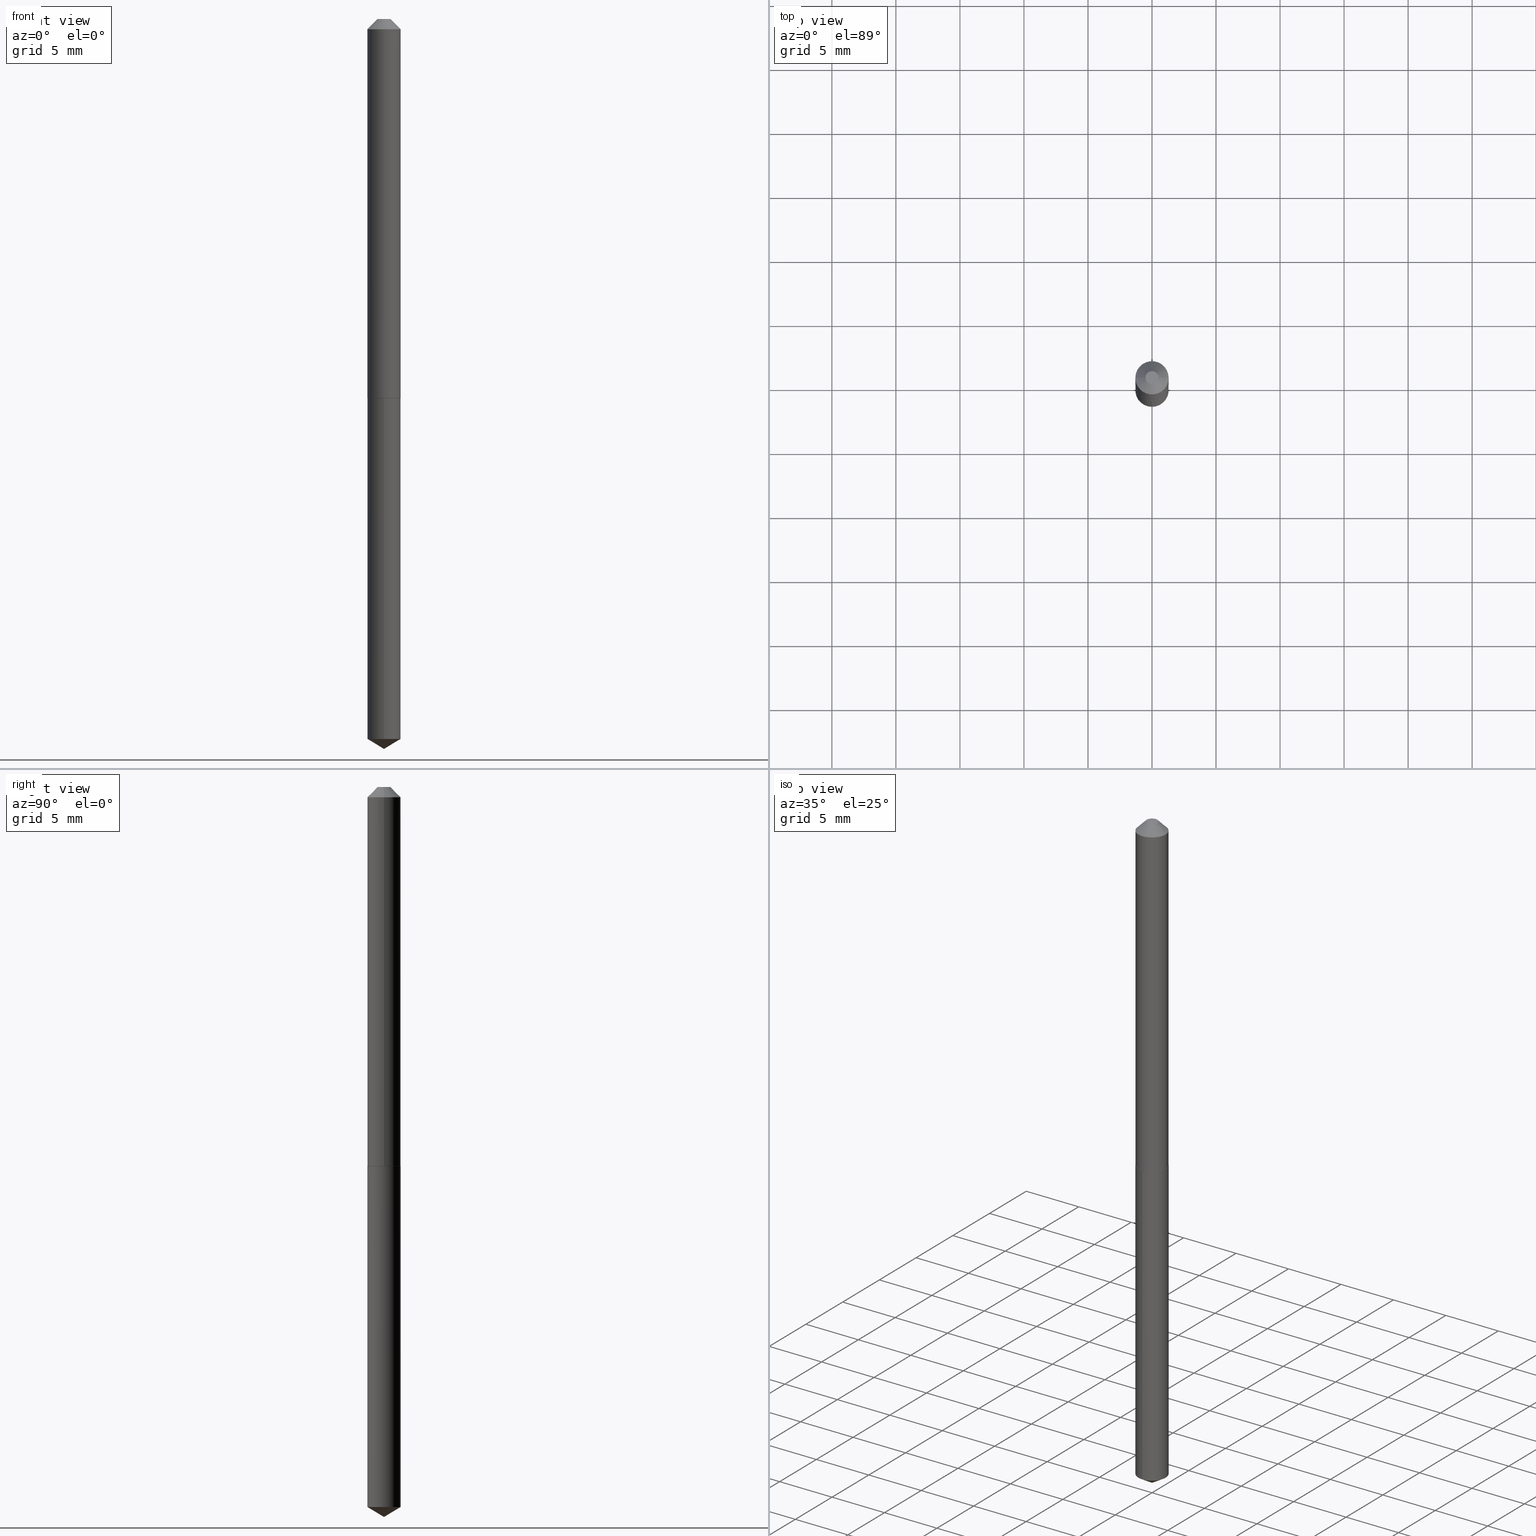
[diagram: canonical four-view strip — front | top / right | iso, engineering-drawing reading convention]
A machine part, canonical four-view strip (front | top / right | iso — engineering-drawing reading convention). The complete STEP part file that produces these views, byte-faithful:
ISO-10303-21;
HEADER;
FILE_DESCRIPTION (( 'STEP AP203' ),
    '1' );
FILE_NAME ('68306.STEP',
    '2024-04-23T13:02:00',
    ( '' ),
    ( '' ),
    'SwSTEP 2.0',
    'SolidWorks 2023',
    '' );
FILE_SCHEMA (( 'CONFIG_CONTROL_DESIGN' ));
ENDSEC;

DATA;
#1 = DIRECTION ( 'NONE',  ( -2.445468806185136597E-29, 3.491481338843145583E-15, 1.000000000000000000 ) ) ;
#2 = APPLICATION_CONTEXT ( 'configuration controlled 3d designs of mechanical parts and assemblies' ) ;
#3 = VECTOR ( 'NONE', #124, 39.37007874015748143 ) ;
#4 = AXIS2_PLACEMENT_3D ( 'NONE', #168, #100, #9 ) ;
#5 = EDGE_CURVE ( 'NONE', #266, #314, #81, .T. ) ;
#6 = LINE ( 'NONE', #29, #106 ) ;
#7 = DIRECTION ( 'NONE',  ( 1.000000000000000000, -6.982962677686271444E-15, 0.000000000000000000 ) ) ;
#8 = EDGE_CURVE ( 'NONE', #314, #20, #386, .T. ) ;
#9 = DIRECTION ( 'NONE',  ( 1.000000000000000000, -6.982962677686266711E-15, 4.876182450887180427E-29 ) ) ;
#10 = VECTOR ( 'NONE', #210, 39.37007874015748143 ) ;
#11 = FACE_OUTER_BOUND ( 'NONE', #285, .T. ) ;
#12 = ORIENTED_EDGE ( 'NONE', *, *, #37, .F. ) ;
#13 = DIRECTION ( 'NONE',  ( 1.000000000000000000, 0.000000000000000000, 0.000000000000000000 ) ) ;
#14 = EDGE_LOOP ( 'NONE', ( #335, #257, #271 ) ) ;
#15 = DATE_TIME_ROLE ( 'creation_date' ) ;
#16 = EDGE_LOOP ( 'NONE', ( #261, #36, #164, #373 ) ) ;
#17 = PERSON_AND_ORGANIZATION ( #336, #380 ) ;
#18 = EDGE_LOOP ( 'NONE', ( #59, #40, #236, #166 ) ) ;
#19 = PERSON_AND_ORGANIZATION ( #336, #380 ) ;
#20 = VERTEX_POINT ( 'NONE', #208 ) ;
#21 = EDGE_CURVE ( 'NONE', #102, #20, #173, .T. ) ;
#22 = AXIS2_PLACEMENT_3D ( 'NONE', #158, #277, #361 ) ;
#23 = ORIENTED_EDGE ( 'NONE', *, *, #104, .T. ) ;
#24 = PRODUCT ( '68306', '68306', '', ( #107 ) ) ;
#25 = DIRECTION ( 'NONE',  ( -2.445468806185136597E-29, 3.491481338843145583E-15, 1.000000000000000000 ) ) ;
#26 = DIRECTION ( 'NONE',  ( -2.445468806185136597E-29, 3.491481338843145583E-15, 1.000000000000000000 ) ) ;
#27 = CARTESIAN_POINT ( 'NONE',  ( 5.412666529157376406E-29, -7.727788840623516747E-15, -2.213335936305789176 ) ) ;
#28 = FACE_OUTER_BOUND ( 'NONE', #333, .T. ) ;
#29 = CARTESIAN_POINT ( 'NONE',  ( 0.05120000000000014123, -4.424754300715918073E-15, -1.164899999999999824 ) ) ;
#30 = EDGE_CURVE ( 'NONE', #306, #384, #298, .T. ) ;
#31 = DIRECTION ( 'NONE',  ( -2.445490314477977203E-29, 3.491450537743621810E-15, 1.000000000000000000 ) ) ;
#32 = AXIS2_PLACEMENT_3D ( 'NONE', #153, #130, #246 ) ;
#33 = LOCAL_TIME ( 9, 2, 0.000000000000000000, #381 ) ;
#34 = FACE_OUTER_BOUND ( 'NONE', #263, .T. ) ;
#35 = CARTESIAN_POINT ( 'NONE',  ( -9.079124649033488605E-28, 1.296234825409797291E-13, 37.12597874015748545 ) ) ;
#36 = ORIENTED_EDGE ( 'NONE', *, *, #259, .T. ) ;
#37 = EDGE_CURVE ( 'NONE', #201, #42, #135, .T. ) ;
#38 = CONICAL_SURFACE ( 'NONE', #267, 0.05120000000000001633, 0.7853981633974450594 ) ;
#39 = DIRECTION ( 'NONE',  ( 1.000000000000000000, -6.982962677686265922E-15, 4.876176775795935793E-29 ) ) ;
#40 = ORIENTED_EDGE ( 'NONE', *, *, #53, .T. ) ;
#41 = CYLINDRICAL_SURFACE ( 'NONE', #247, 0.05120000000000007184 ) ;
#42 = VERTEX_POINT ( 'NONE', #78 ) ;
#43 = EDGE_CURVE ( 'NONE', #192, #375, #288, .T. ) ;
#44 = ORIENTED_EDGE ( 'NONE', *, *, #234, .F. ) ;
#45 = DESIGN_CONTEXT ( 'detailed design', #85, 'design' ) ;
#46 = CC_DESIGN_PERSON_AND_ORGANIZATION_ASSIGNMENT ( #17, #345, ( #125 ) ) ;
#47 = APPROVAL_ROLE ( '' ) ;
#48 = CC_DESIGN_APPROVAL ( #91, ( #171 ) ) ;
#49 = ORIENTED_EDGE ( 'NONE', *, *, #43, .T. ) ;
#50 = DIMENSIONAL_EXPONENTS ( 1.000000000000000000, 0.000000000000000000, 0.000000000000000000, 0.000000000000000000, 0.000000000000000000, 0.000000000000000000, 0.000000000000000000 ) ;
#51 = COORDINATED_UNIVERSAL_TIME_OFFSET ( 5, 0, .BEHIND. ) ;
#52 = DIRECTION ( 'NONE',  ( -2.445468806185136597E-29, 3.491481338843145583E-15, 1.000000000000000000 ) ) ;
#53 = EDGE_CURVE ( 'NONE', #342, #192, #146, .T. ) ;
#54 = DATE_AND_TIME ( #372, #33 ) ;
#55 = DIRECTION ( 'NONE',  ( 1.000000000000000000, -6.982962677686273021E-15, 0.000000000000000000 ) ) ;
#56 = AXIS2_PLACEMENT_3D ( 'NONE', #293, #118, #212 ) ;
#57 =( GEOMETRIC_REPRESENTATION_CONTEXT ( 3 ) GLOBAL_UNCERTAINTY_ASSIGNED_CONTEXT ( ( #220 ) ) GLOBAL_UNIT_ASSIGNED_CONTEXT ( ( #70, #196, #225 ) ) REPRESENTATION_CONTEXT ( 'NONE', 'WORKASPACE' ) );
#58 = DIRECTION ( 'NONE',  ( 1.000000000000000000, -6.982962677686267499E-15, 0.000000000000000000 ) ) ;
#59 = ORIENTED_EDGE ( 'NONE', *, *, #114, .T. ) ;
#60 = CARTESIAN_POINT ( 'NONE',  ( 2.849949346728158309E-29, -4.068972352287802235E-15, -1.165399999999999991 ) ) ;
#61 = EDGE_CURVE ( 'NONE', #102, #266, #260, .T. ) ;
#62 = DIRECTION ( 'NONE',  ( -1.000000000000000000, 6.982962677686265922E-15, -4.876176775795935793E-29 ) ) ;
#63 = DIRECTION ( 'NONE',  ( -1.000000000000000000, 6.982962677686267499E-15, 0.000000000000000000 ) ) ;
#64 = EDGE_CURVE ( 'NONE', #375, #192, #230, .T. ) ;
#65 = FACE_OUTER_BOUND ( 'NONE', #16, .T. ) ;
#66 = CARTESIAN_POINT ( 'NONE',  ( 5.412666529157376406E-29, -7.727788840623516747E-15, -2.213335936305789176 ) ) ;
#67 = AXIS2_PLACEMENT_3D ( 'NONE', #219, #244, #185 ) ;
#68 = EDGE_CURVE ( 'NONE', #384, #375, #177, .T. ) ;
#69 = DIRECTION ( 'NONE',  ( 1.000000000000000000, -6.982962677686267499E-15, 0.000000000000000000 ) ) ;
#70 =( CONVERSION_BASED_UNIT ( 'INCH', #101 ) LENGTH_UNIT ( ) NAMED_UNIT ( #50 ) );
#71 = ORIENTED_EDGE ( 'NONE', *, *, #234, .T. ) ;
#72 = VECTOR ( 'NONE', #180, 39.37007874015748143 ) ;
#73 = AXIS2_PLACEMENT_3D ( 'NONE', #35, #280, #233 ) ;
#74 = ORIENTED_EDGE ( 'NONE', *, *, #313, .T. ) ;
#75 = ADVANCED_FACE ( 'NONE', ( #241 ), #86, .F. ) ;
#76 = CARTESIAN_POINT ( 'NONE',  ( -0.05120000000000007184, 3.637978807091718056E-16, -2.518494766210515431E-30 ) ) ;
#77 = PERSON_AND_ORGANIZATION ( #336, #380 ) ;
#78 = CARTESIAN_POINT ( 'NONE',  ( -0.05120000000000014123, -3.703428730909207693E-15, -1.164899999999999824 ) ) ;
#79 = CONICAL_SURFACE ( 'NONE', #32, 65.52281426576932688, 1.029744258676660529 ) ;
#80 = CALENDAR_DATE ( 2024, 23, 4 ) ;
#81 = LINE ( 'NONE', #347, #10 ) ;
#82 = APPROVAL_DATE_TIME ( #270, #268 ) ;
#83 = ORIENTED_EDGE ( 'NONE', *, *, #61, .F. ) ;
#84 = SHAPE_DEFINITION_REPRESENTATION ( #251, #128 ) ;
#85 = APPLICATION_CONTEXT ( 'configuration controlled 3d designs of mechanical parts and assemblies' ) ;
#86 = PLANE ( 'NONE',  #273 ) ;
#87 = CIRCLE ( 'NONE', #140, 0.05070000000000022405 ) ;
#88 = ORIENTED_EDGE ( 'NONE', *, *, #376, .T. ) ;
#89 = ADVANCED_FACE ( 'NONE', ( #327 ), #302, .T. ) ;
#90 = CARTESIAN_POINT ( 'NONE',  ( 3.637978807092255468E-16, 0.05119999999999593626, -1.165399999999999991 ) ) ;
#91 = APPROVAL ( #174, 'UNSPECIFIED' ) ;
#92 = PLANE ( 'NONE',  #115 ) ;
#93 = EDGE_CURVE ( 'NONE', #201, #314, #156, .T. ) ;
#94 = DIRECTION ( 'NONE',  ( -2.445490314477977203E-29, 3.491450537743621810E-15, 1.000000000000000000 ) ) ;
#95 = AXIS2_PLACEMENT_3D ( 'NONE', #202, #305, #39 ) ;
#96 = FACE_OUTER_BOUND ( 'NONE', #14, .T. ) ;
#97 = LINE ( 'NONE', #250, #278 ) ;
#98 = CARTESIAN_POINT ( 'NONE',  ( 0.05070000000000022405, -4.423008560046498147E-15, -1.165399999999999991 ) ) ;
#99 = AXIS2_PLACEMENT_3D ( 'NONE', #127, #390, #275 ) ;
#100 = DIRECTION ( 'NONE',  ( -2.445468806185136597E-29, 3.491481338843145583E-15, 1.000000000000000000 ) ) ;
#101 = LENGTH_MEASURE_WITH_UNIT ( LENGTH_MEASURE( 0.02539999999999999897 ), #307 );
#102 = VERTEX_POINT ( 'NONE', #132 ) ;
#103 = DIRECTION ( 'NONE',  ( -2.445468806185136877E-29, 3.491481338843145188E-15, 1.000000000000000000 ) ) ;
#104 = EDGE_CURVE ( 'NONE', #306, #342, #97, .T. ) ;
#105 = ORIENTED_EDGE ( 'NONE', *, *, #222, .T. ) ;
#106 = VECTOR ( 'NONE', #328, 39.37007874015748143 ) ;
#107 = MECHANICAL_CONTEXT ( 'NONE', #2, 'mechanical' ) ;
#108 = ORIENTED_EDGE ( 'NONE', *, *, #61, .T. ) ;
#109 = CC_DESIGN_DATE_AND_TIME_ASSIGNMENT ( #142, #350, ( #248 ) ) ;
#110 = COORDINATED_UNIVERSAL_TIME_OFFSET ( 5, 0, .BEHIND. ) ;
#111 = ORIENTED_EDGE ( 'NONE', *, *, #5, .F. ) ;
#112 = PERSON_AND_ORGANIZATION_ROLE ( 'classification_officer' ) ;
#113 = DIRECTION ( 'NONE',  ( -2.445490314477977203E-29, 3.491450537743622204E-15, 1.000000000000000000 ) ) ;
#114 = EDGE_CURVE ( 'NONE', #384, #342, #205, .T. ) ;
#115 = AXIS2_PLACEMENT_3D ( 'NONE', #217, #325, #62 ) ;
#116 = PERSON_AND_ORGANIZATION_ROLE ( 'design_supplier' ) ;
#117 = CC_DESIGN_SECURITY_CLASSIFICATION ( #248, ( #171 ) ) ;
#118 = DIRECTION ( 'NONE',  ( -2.445490314477977203E-29, 3.491450537743621810E-15, 1.000000000000000000 ) ) ;
#119 = COORDINATED_UNIVERSAL_TIME_OFFSET ( 5, 0, .BEHIND. ) ;
#120 = DIRECTION ( 'NONE',  ( -2.445490314477977203E-29, 3.491450537743622204E-15, 1.000000000000000000 ) ) ;
#121 = APPROVAL_DATE_TIME ( #145, #91 ) ;
#122 = VERTEX_POINT ( 'NONE', #330 ) ;
#123 = CIRCLE ( 'NONE', #198, 0.05070000000000022405 ) ;
#124 = DIRECTION ( 'NONE',  ( -2.445468806185136877E-29, 3.491481338843145188E-15, 1.000000000000000000 ) ) ;
#125 = PRODUCT_DEFINITION ( 'UNKNOWN', '', #171, #45 ) ;
#126 = DIRECTION ( 'NONE',  ( -2.445490314477977203E-29, 3.491450537743621810E-15, 1.000000000000000000 ) ) ;
#127 = CARTESIAN_POINT ( 'NONE',  ( 0.000000000000000000, 0.000000000000000000, 0.000000000000000000 ) ) ;
#128 = ADVANCED_BREP_SHAPE_REPRESENTATION ( '68306', ( #329, #331, #131 ), #57 ) ;
#129 = EDGE_CURVE ( 'NONE', #316, #201, #6, .T. ) ;
#130 = DIRECTION ( 'NONE',  ( -2.445490314477977203E-29, 3.491450537743621810E-15, 1.000000000000000000 ) ) ;
#131 = AXIS2_PLACEMENT_3D ( 'NONE', #200, #311, #13 ) ;
#132 = CARTESIAN_POINT ( 'NONE',  ( -0.01995000000000000592, 1.938645013392645287E-16, 4.837354856620407811E-19 ) ) ;
#133 = CARTESIAN_POINT ( 'NONE',  ( 7.642090019328602662E-31, -1.091087918388490267E-16, -0.03125000000000020817 ) ) ;
#134 = CARTESIAN_POINT ( 'NONE',  ( 0.05120000000000001633, -4.666364809363860477E-16, -0.03125000000000020817 ) ) ;
#135 = CIRCLE ( 'NONE', #182, 0.05120000000000014123 ) ;
#136 = CC_DESIGN_PERSON_AND_ORGANIZATION_ASSIGNMENT ( #265, #112, ( #248 ) ) ;
#137 = LINE ( 'NONE', #76, #326 ) ;
#138 = DIRECTION ( 'NONE',  ( -1.000000000000000000, 6.982962677686267499E-15, 0.000000000000000000 ) ) ;
#139 = ORIENTED_EDGE ( 'NONE', *, *, #313, .F. ) ;
#140 = AXIS2_PLACEMENT_3D ( 'NONE', #60, #181, #299 ) ;
#141 = CC_DESIGN_APPROVAL ( #308, ( #125 ) ) ;
#142 = DATE_AND_TIME ( #315, #206 ) ;
#143 = ORIENTED_EDGE ( 'NONE', *, *, #340, .T. ) ;
#144 = ADVANCED_FACE ( 'NONE', ( #28 ), #159, .T. ) ;
#145 = DATE_AND_TIME ( #235, #160 ) ;
#146 = LINE ( 'NONE', #383, #149 ) ;
#147 = APPROVAL_STATUS ( 'not_yet_approved' ) ;
#148 = ORIENTED_EDGE ( 'NONE', *, *, #5, .T. ) ;
#149 = VECTOR ( 'NONE', #113, 39.37007874015748143 ) ;
#150 = CARTESIAN_POINT ( 'NONE',  ( 5.487874683191075878E-29, -7.835235942953230796E-15, -2.244099999999999984 ) ) ;
#151 = APPROVAL_ROLE ( '' ) ;
#152 = DIRECTION ( 'NONE',  ( -5.985567269335965734E-15, -0.8571673007021136659, 0.5150380749100520461 ) ) ;
#153 = CARTESIAN_POINT ( 'NONE',  ( -9.079124649033488605E-28, 1.296234825409797291E-13, 37.12597874015748545 ) ) ;
#154 = CLOSED_SHELL ( 'NONE', ( #184, #382, #207, #163, #75 ) ) ;
#155 = CARTESIAN_POINT ( 'NONE',  ( 2.849949346728157749E-29, -4.068972352287801446E-15, -1.165399999999999991 ) ) ;
#156 = LINE ( 'NONE', #355, #3 ) ;
#157 = CARTESIAN_POINT ( 'NONE',  ( 7.642090019328602662E-31, -1.091087918388490267E-16, -0.03125000000000020817 ) ) ;
#158 = CARTESIAN_POINT ( 'NONE',  ( 2.848726612325065508E-29, -4.067226611618379942E-15, -1.164899999999999824 ) ) ;
#159 = CONICAL_SURFACE ( 'NONE', #369, 0.05120000000000001633, 0.7853981633974450594 ) ;
#160 = LOCAL_TIME ( 9, 2, 0.000000000000000000, #110 ) ;
#161 = DIRECTION ( 'NONE',  ( 1.000000000000000000, -6.982962677686266711E-15, 4.876176775795936353E-29 ) ) ;
#162 = CARTESIAN_POINT ( 'NONE',  ( 5.487924814720028043E-29, -7.835164151750461188E-15, -2.244099999999999984 ) ) ;
#163 = ADVANCED_FACE ( 'NONE', ( #65 ), #272, .T. ) ;
#164 = ORIENTED_EDGE ( 'NONE', *, *, #68, .T. ) ;
#165 = DIRECTION ( 'NONE',  ( 2.445468806185136597E-29, -3.491481338843145583E-15, -1.000000000000000000 ) ) ;
#166 = ORIENTED_EDGE ( 'NONE', *, *, #68, .F. ) ;
#167 = APPROVAL_PERSON_ORGANIZATION ( #320, #308, #151 ) ;
#168 = CARTESIAN_POINT ( 'NONE',  ( -1.182960040634186398E-47, 1.688953421129307900E-33, 4.837354856632054872E-19 ) ) ;
#169 = ORIENTED_EDGE ( 'NONE', *, *, #340, .F. ) ;
#170 = CLOSED_SHELL ( 'NONE', ( #286, #89, #310, #297, #187, #362, #144, #264 ) ) ;
#171 = PRODUCT_DEFINITION_FORMATION_WITH_SPECIFIED_SOURCE ( 'ANY', '', #24, .NOT_KNOWN. ) ;
#172 = APPROVAL_STATUS ( 'not_yet_approved' ) ;
#173 = LINE ( 'NONE', #296, #72 ) ;
#174 = APPROVAL_STATUS ( 'not_yet_approved' ) ;
#175 = DIRECTION ( 'NONE',  ( 1.000000000000000000, -6.982962677686266711E-15, 4.876182450887180427E-29 ) ) ;
#176 = PERSON_AND_ORGANIZATION_ROLE ( 'creator' ) ;
#177 = LINE ( 'NONE', #294, #197 ) ;
#178 = COORDINATED_UNIVERSAL_TIME_OFFSET ( 5, 0, .BEHIND. ) ;
#179 = ORIENTED_EDGE ( 'NONE', *, *, #8, .T. ) ;
#180 = DIRECTION ( 'NONE',  ( -0.7071067811865452413, 2.468850131082233000E-15, -0.7071067811865497932 ) ) ;
#181 = DIRECTION ( 'NONE',  ( -2.445468806185136597E-29, 3.491481338843145583E-15, 1.000000000000000000 ) ) ;
#182 = AXIS2_PLACEMENT_3D ( 'NONE', #321, #26, #55 ) ;
#183 = CARTESIAN_POINT ( 'NONE',  ( 0.01995000000000000592, -2.986166121901468526E-16, 4.837354856647359274E-19 ) ) ;
#184 = ADVANCED_FACE ( 'NONE', ( #304 ), #303, .T. ) ;
#185 = DIRECTION ( 'NONE',  ( -6.982962677686265133E-15, -1.000000000000000000, 2.667820306312756424E-15 ) ) ;
#186 = DIRECTION ( 'NONE',  ( -6.982962677686265133E-15, -1.000000000000000000, 2.667820306312756424E-15 ) ) ;
#187 = ADVANCED_FACE ( 'NONE', ( #276 ), #254, .T. ) ;
#188 = DIRECTION ( 'NONE',  ( 2.445468806185136597E-29, -3.491481338843145583E-15, -1.000000000000000000 ) ) ;
#189 = AXIS2_PLACEMENT_3D ( 'NONE', #356, #1, #223 ) ;
#190 = CC_DESIGN_PERSON_AND_ORGANIZATION_ASSIGNMENT ( #19, #211, ( #24 ) ) ;
#191 = PLANE ( 'NONE',  #95 ) ;
#192 = VERTEX_POINT ( 'NONE', #90 ) ;
#193 = CARTESIAN_POINT ( 'NONE',  ( 0.000000000000000000, 0.000000000000000000, 0.000000000000000000 ) ) ;
#194 = EDGE_CURVE ( 'NONE', #42, #201, #213, .T. ) ;
#195 = ORIENTED_EDGE ( 'NONE', *, *, #8, .F. ) ;
#196 =( NAMED_UNIT ( * ) PLANE_ANGLE_UNIT ( ) SI_UNIT ( $, .RADIAN. ) );
#197 = VECTOR ( 'NONE', #120, 39.37007874015748143 ) ;
#198 = AXIS2_PLACEMENT_3D ( 'NONE', #258, #341, #7 ) ;
#199 = LOCAL_TIME ( 9, 2, 0.000000000000000000, #51 ) ;
#200 = CARTESIAN_POINT ( 'NONE',  ( 0.000000000000000000, 0.000000000000000000, 0.000000000000000000 ) ) ;
#201 = VERTEX_POINT ( 'NONE', #216 ) ;
#202 = CARTESIAN_POINT ( 'NONE',  ( 6.574811106585889741E-30, -7.208711653881809431E-15, -1.165399999999999991 ) ) ;
#203 = PERSON_AND_ORGANIZATION ( #336, #380 ) ;
#204 = DIRECTION ( 'NONE',  ( -2.445490314477977203E-29, 3.491450537743621810E-15, 1.000000000000000000 ) ) ;
#205 = CIRCLE ( 'NONE', #332, 0.05120000000000000939 ) ;
#206 = LOCAL_TIME ( 9, 2, 0.000000000000000000, #178 ) ;
#207 = ADVANCED_FACE ( 'NONE', ( #96 ), #79, .T. ) ;
#208 = CARTESIAN_POINT ( 'NONE',  ( -0.05120000000000001633, -1.724369821019441680E-15, -0.03125000000000020817 ) ) ;
#209 = PERSON_AND_ORGANIZATION ( #336, #380 ) ;
#210 = DIRECTION ( 'NONE',  ( 0.7071067811865452413, -7.319954787623248157E-15, -0.7071067811865497932 ) ) ;
#211 = PERSON_AND_ORGANIZATION_ROLE ( 'design_owner' ) ;
#212 = DIRECTION ( 'NONE',  ( -6.982962677686265133E-15, -1.000000000000000000, 2.667820306312756424E-15 ) ) ;
#213 = CIRCLE ( 'NONE', #189, 0.05120000000000014123 ) ;
#214 = AXIS2_PLACEMENT_3D ( 'NONE', #229, #227, #69 ) ;
#215 = EDGE_LOOP ( 'NONE', ( #108, #228 ) ) ;
#216 = CARTESIAN_POINT ( 'NONE',  ( 0.05120000000000014123, -4.424754300715918073E-15, -1.164899999999999824 ) ) ;
#217 = CARTESIAN_POINT ( 'NONE',  ( -5.914800203170931988E-48, 8.444767105646539499E-34, 2.418677428316027436E-19 ) ) ;
#218 = AXIS2_PLACEMENT_3D ( 'NONE', #155, #94, #186 ) ;
#219 = CARTESIAN_POINT ( 'NONE',  ( 2.849949346728157749E-29, -4.068972352287801446E-15, -1.165399999999999991 ) ) ;
#220 = UNCERTAINTY_MEASURE_WITH_UNIT (LENGTH_MEASURE( 1.000000000000000082E-05 ), #70, 'distance_accuracy_value', 'NONE');
#221 = DIRECTION ( 'NONE',  ( -6.982962677686265133E-15, -1.000000000000000000, 5.335640612625512847E-15 ) ) ;
#222 = EDGE_CURVE ( 'NONE', #122, #42, #324, .T. ) ;
#223 = DIRECTION ( 'NONE',  ( 1.000000000000000000, -6.982962677686273021E-15, 0.000000000000000000 ) ) ;
#224 = EDGE_LOOP ( 'NONE', ( #139, #44 ) ) ;
#225 =( NAMED_UNIT ( * ) SI_UNIT ( $, .STERADIAN. ) SOLID_ANGLE_UNIT ( ) );
#226 = ORIENTED_EDGE ( 'NONE', *, *, #64, .T. ) ;
#227 = DIRECTION ( 'NONE',  ( -2.445468806185136597E-29, 3.491481338843145583E-15, 1.000000000000000000 ) ) ;
#228 = ORIENTED_EDGE ( 'NONE', *, *, #387, .T. ) ;
#229 = CARTESIAN_POINT ( 'NONE',  ( 7.642090019328602662E-31, -1.091087918388490267E-16, -0.03125000000000020817 ) ) ;
#230 = CIRCLE ( 'NONE', #56, 0.05120000000000000939 ) ;
#231 = ORIENTED_EDGE ( 'NONE', *, *, #93, .F. ) ;
#232 = CONICAL_SURFACE ( 'NONE', #73, 65.52281426576932688, 1.029744258676660529 ) ;
#233 = DIRECTION ( 'NONE',  ( -6.982962677686265922E-15, -1.000000000000000000, 3.468864327941546883E-15 ) ) ;
#234 = EDGE_CURVE ( 'NONE', #122, #316, #87, .T. ) ;
#235 = CALENDAR_DATE ( 2024, 23, 4 ) ;
#236 = ORIENTED_EDGE ( 'NONE', *, *, #64, .F. ) ;
#237 = APPROVAL_DATE_TIME ( #54, #308 ) ;
#238 = EDGE_LOOP ( 'NONE', ( #309, #71, #351, #262 ) ) ;
#239 = ORIENTED_EDGE ( 'NONE', *, *, #194, .T. ) ;
#240 = DATE_AND_TIME ( #377, #354 ) ;
#241 = FACE_OUTER_BOUND ( 'NONE', #364, .T. ) ;
#242 = ORIENTED_EDGE ( 'NONE', *, *, #21, .F. ) ;
#243 = AXIS2_PLACEMENT_3D ( 'NONE', #252, #363, #283 ) ;
#244 = DIRECTION ( 'NONE',  ( -2.445490314477977203E-29, 3.491450537743621810E-15, 1.000000000000000000 ) ) ;
#245 = FACE_OUTER_BOUND ( 'NONE', #215, .T. ) ;
#246 = DIRECTION ( 'NONE',  ( -6.982962677686265922E-15, -1.000000000000000000, 3.468864327941546883E-15 ) ) ;
#247 = AXIS2_PLACEMENT_3D ( 'NONE', #193, #253, #161 ) ;
#248 = SECURITY_CLASSIFICATION ( '', '', #374 ) ;
#249 = DIRECTION ( 'NONE',  ( -0.7071067811863663843, 7.493145998869699406E-15, 0.7071067811867286501 ) ) ;
#250 = CARTESIAN_POINT ( 'NONE',  ( 5.487925254314361673E-29, -7.835164151750461188E-15, -2.244099999999999984 ) ) ;
#251 = PRODUCT_DEFINITION_SHAPE ( 'NONE', 'NONE',  #125 ) ;
#252 = CARTESIAN_POINT ( 'NONE',  ( 2.848726612325065508E-29, -4.067226611618379942E-15, -1.164899999999999824 ) ) ;
#253 = DIRECTION ( 'NONE',  ( -2.445468806185136597E-29, 3.491481338843145583E-15, 1.000000000000000000 ) ) ;
#254 = CONICAL_SURFACE ( 'NONE', #22, 0.05120000000000014123, 0.7853981633971921505 ) ;
#255 = ORIENTED_EDGE ( 'NONE', *, *, #21, .T. ) ;
#256 = CARTESIAN_POINT ( 'NONE',  ( 3.637978807092252510E-16, 0.05119999999999226559, -2.213335936305789620 ) ) ;
#257 = ORIENTED_EDGE ( 'NONE', *, *, #30, .T. ) ;
#258 = CARTESIAN_POINT ( 'NONE',  ( 2.849949346728158309E-29, -4.068972352287802235E-15, -1.165399999999999991 ) ) ;
#259 = EDGE_CURVE ( 'NONE', #342, #384, #353, .T. ) ;
#260 = CIRCLE ( 'NONE', #337, 0.01995000000000000592 ) ;
#261 = ORIENTED_EDGE ( 'NONE', *, *, #53, .F. ) ;
#262 = ORIENTED_EDGE ( 'NONE', *, *, #194, .F. ) ;
#263 = EDGE_LOOP ( 'NONE', ( #74, #105, #12, #339 ) ) ;
#264 = ADVANCED_FACE ( 'NONE', ( #245 ), #92, .F. ) ;
#265 = PERSON_AND_ORGANIZATION ( #336, #380 ) ;
#266 = VERTEX_POINT ( 'NONE', #183 ) ;
#267 = AXIS2_PLACEMENT_3D ( 'NONE', #133, #165, #138 ) ;
#268 = APPROVAL ( #172, 'UNSPECIFIED' ) ;
#269 = CARTESIAN_POINT ( 'NONE',  ( 2.849949346728157749E-29, -4.068972352287801446E-15, -1.165399999999999991 ) ) ;
#270 = DATE_AND_TIME ( #80, #199 ) ;
#271 = ORIENTED_EDGE ( 'NONE', *, *, #259, .F. ) ;
#272 = CYLINDRICAL_SURFACE ( 'NONE', #218, 0.05120000000000000939 ) ;
#273 = AXIS2_PLACEMENT_3D ( 'NONE', #322, #279, #385 ) ;
#274 = CC_DESIGN_APPROVAL ( #268, ( #248 ) ) ;
#275 = DIRECTION ( 'NONE',  ( 1.000000000000000000, -6.982962677686266711E-15, 4.876176775795936353E-29 ) ) ;
#276 = FACE_OUTER_BOUND ( 'NONE', #238, .T. ) ;
#277 = DIRECTION ( 'NONE',  ( -2.445468806185136597E-29, 3.491481338843145583E-15, 1.000000000000000000 ) ) ;
#278 = VECTOR ( 'NONE', #360, 39.37007874015748143 ) ;
#279 = DIRECTION ( 'NONE',  ( 2.445490314477976643E-29, -3.491450537743622204E-15, -1.000000000000000000 ) ) ;
#280 = DIRECTION ( 'NONE',  ( -2.445490314477977203E-29, 3.491450537743621810E-15, 1.000000000000000000 ) ) ;
#281 = FACE_OUTER_BOUND ( 'NONE', #224, .T. ) ;
#282 = ORIENTED_EDGE ( 'NONE', *, *, #114, .F. ) ;
#283 = DIRECTION ( 'NONE',  ( 1.000000000000000000, -6.982962677686273021E-15, 0.000000000000000000 ) ) ;
#284 = VECTOR ( 'NONE', #249, 39.37007874015748143 ) ;
#285 = EDGE_LOOP ( 'NONE', ( #334, #23, #282 ) ) ;
#286 = ADVANCED_FACE ( 'NONE', ( #301 ), #38, .T. ) ;
#287 = FACE_OUTER_BOUND ( 'NONE', #344, .T. ) ;
#288 = CIRCLE ( 'NONE', #378, 0.05120000000000000939 ) ;
#289 = EDGE_LOOP ( 'NONE', ( #366, #148, #179, #242 ) ) ;
#290 = CIRCLE ( 'NONE', #214, 0.05120000000000001633 ) ;
#291 = APPROVAL_ROLE ( '' ) ;
#292 = DIRECTION ( 'NONE',  ( -6.982962677686265133E-15, -1.000000000000000000, 2.667820306312756424E-15 ) ) ;
#293 = CARTESIAN_POINT ( 'NONE',  ( 2.849949346728157749E-29, -4.068972352287801446E-15, -1.165399999999999991 ) ) ;
#294 = CARTESIAN_POINT ( 'NONE',  ( -3.575276890975083509E-16, -0.05120000000000407558, -1.165399999999999769 ) ) ;
#295 = VECTOR ( 'NONE', #152, 39.37007874015748143 ) ;
#296 = CARTESIAN_POINT ( 'NONE',  ( -0.05120000000000001633, 2.484188972586879944E-16, -0.03125000000000020817 ) ) ;
#297 = ADVANCED_FACE ( 'NONE', ( #281 ), #191, .F. ) ;
#298 = LINE ( 'NONE', #150, #295 ) ;
#299 = DIRECTION ( 'NONE',  ( 1.000000000000000000, -6.982962677686271444E-15, 0.000000000000000000 ) ) ;
#300 = AXIS2_PLACEMENT_3D ( 'NONE', #27, #126, #221 ) ;
#301 = FACE_OUTER_BOUND ( 'NONE', #289, .T. ) ;
#302 = CYLINDRICAL_SURFACE ( 'NONE', #99, 0.05120000000000007184 ) ;
#303 = CYLINDRICAL_SURFACE ( 'NONE', #67, 0.05120000000000000939 ) ;
#304 = FACE_OUTER_BOUND ( 'NONE', #18, .T. ) ;
#305 = DIRECTION ( 'NONE',  ( -2.438088387897960049E-29, 3.491481338843145188E-15, 1.000000000000000000 ) ) ;
#306 = VERTEX_POINT ( 'NONE', #162 ) ;
#307 =( LENGTH_UNIT ( ) NAMED_UNIT ( * ) SI_UNIT ( $, .METRE. ) );
#308 = APPROVAL ( #147, 'UNSPECIFIED' ) ;
#309 = ORIENTED_EDGE ( 'NONE', *, *, #222, .F. ) ;
#310 = ADVANCED_FACE ( 'NONE', ( #34 ), #359, .T. ) ;
#311 = DIRECTION ( 'NONE',  ( 0.000000000000000000, 0.000000000000000000, 1.000000000000000000 ) ) ;
#312 = ORIENTED_EDGE ( 'NONE', *, *, #376, .F. ) ;
#313 = EDGE_CURVE ( 'NONE', #316, #122, #123, .T. ) ;
#314 = VERTEX_POINT ( 'NONE', #134 ) ;
#315 = CALENDAR_DATE ( 2024, 23, 4 ) ;
#316 = VERTEX_POINT ( 'NONE', #98 ) ;
#317 = PERSON_AND_ORGANIZATION ( #336, #380 ) ;
#318 = CC_DESIGN_PERSON_AND_ORGANIZATION_ASSIGNMENT ( #209, #116, ( #171 ) ) ;
#319 = CARTESIAN_POINT ( 'NONE',  ( -1.182960040634186398E-47, 1.688953421129307900E-33, 4.837354856632054872E-19 ) ) ;
#320 = PERSON_AND_ORGANIZATION ( #336, #380 ) ;
#321 = CARTESIAN_POINT ( 'NONE',  ( 2.848726612325065508E-29, -4.067226611618379942E-15, -1.164899999999999824 ) ) ;
#322 = CARTESIAN_POINT ( 'NONE',  ( 2.849949346728157749E-29, -4.068972352287801446E-15, -1.165399999999999991 ) ) ;
#323 = CARTESIAN_POINT ( 'NONE',  ( 7.642090019328602662E-31, -1.091087918388490267E-16, -0.03125000000000020817 ) ) ;
#324 = LINE ( 'NONE', #358, #284 ) ;
#325 = DIRECTION ( 'NONE',  ( 2.438088387897960049E-29, -3.491481338843145188E-15, -1.000000000000000000 ) ) ;
#326 = VECTOR ( 'NONE', #103, 39.37007874015748143 ) ;
#327 = FACE_OUTER_BOUND ( 'NONE', #349, .T. ) ;
#328 = DIRECTION ( 'NONE',  ( 0.7071067811863663843, -2.468850131080359456E-15, 0.7071067811867286501 ) ) ;
#329 = MANIFOLD_SOLID_BREP ( 'Body-Move/Copy2[1]', #154 ) ;
#330 = CARTESIAN_POINT ( 'NONE',  ( -0.05070000000000022405, -3.706077958083318894E-15, -1.165399999999999991 ) ) ;
#331 = MANIFOLD_SOLID_BREP ( 'Body-Move/Copy2[2]', #170 ) ;
#332 = AXIS2_PLACEMENT_3D ( 'NONE', #66, #31, #388 ) ;
#333 = EDGE_LOOP ( 'NONE', ( #111, #83, #255, #88 ) ) ;
#334 = ORIENTED_EDGE ( 'NONE', *, *, #30, .F. ) ;
#335 = ORIENTED_EDGE ( 'NONE', *, *, #104, .F. ) ;
#336 = PERSON ( 'UNSPECIFIED', 'UNSPECIFIED', 'UNSPECIFIED', ('UNSPECIFIED'), ('UNSPECIFIED'), ('UNSPECIFIED') ) ;
#337 = AXIS2_PLACEMENT_3D ( 'NONE', #319, #52, #175 ) ;
#338 = APPROVAL_PERSON_ORGANIZATION ( #317, #268, #291 ) ;
#339 = ORIENTED_EDGE ( 'NONE', *, *, #129, .F. ) ;
#340 = EDGE_CURVE ( 'NONE', #42, #20, #137, .T. ) ;
#341 = DIRECTION ( 'NONE',  ( -2.445468806185136597E-29, 3.491481338843145583E-15, 1.000000000000000000 ) ) ;
#342 = VERTEX_POINT ( 'NONE', #256 ) ;
#343 = APPLICATION_PROTOCOL_DEFINITION ( 'international standard', 'config_control_design', 1994, #85 ) ;
#344 = EDGE_LOOP ( 'NONE', ( #169, #239, #352, #312 ) ) ;
#345 = PERSON_AND_ORGANIZATION_ROLE ( 'creator' ) ;
#346 = AXIS2_PLACEMENT_3D ( 'NONE', #323, #25, #58 ) ;
#347 = CARTESIAN_POINT ( 'NONE',  ( 0.05120000000000001633, -4.603662893247515343E-16, -0.03125000000000020817 ) ) ;
#348 = APPROVAL_PERSON_ORGANIZATION ( #77, #91, #47 ) ;
#349 = EDGE_LOOP ( 'NONE', ( #379, #143, #195, #231 ) ) ;
#350 = DATE_TIME_ROLE ( 'classification_date' ) ;
#351 = ORIENTED_EDGE ( 'NONE', *, *, #129, .T. ) ;
#352 = ORIENTED_EDGE ( 'NONE', *, *, #93, .T. ) ;
#353 = CIRCLE ( 'NONE', #300, 0.05120000000000000939 ) ;
#354 = LOCAL_TIME ( 9, 2, 0.000000000000000000, #119 ) ;
#355 = CARTESIAN_POINT ( 'NONE',  ( 0.05120000000000007184, -3.575276890975373415E-16, 2.496602509207522887E-30 ) ) ;
#356 = CARTESIAN_POINT ( 'NONE',  ( 2.848726612325065508E-29, -4.067226611618379942E-15, -1.164899999999999824 ) ) ;
#357 = PRODUCT_RELATED_PRODUCT_CATEGORY ( 'detail', '', ( #24 ) ) ;
#358 = CARTESIAN_POINT ( 'NONE',  ( -0.05120000000000014123, -3.703428730909207693E-15, -1.164899999999999824 ) ) ;
#359 = CONICAL_SURFACE ( 'NONE', #243, 0.05120000000000014123, 0.7853981633971921505 ) ;
#360 = DIRECTION ( 'NONE',  ( 6.090539988449802890E-15, 0.8571673007021172186, 0.5150380749100460509 ) ) ;
#361 = DIRECTION ( 'NONE',  ( 1.000000000000000000, -6.982962677686273021E-15, 0.000000000000000000 ) ) ;
#362 = ADVANCED_FACE ( 'NONE', ( #287 ), #41, .T. ) ;
#363 = DIRECTION ( 'NONE',  ( -2.445468806185136597E-29, 3.491481338843145583E-15, 1.000000000000000000 ) ) ;
#364 = EDGE_LOOP ( 'NONE', ( #226, #49 ) ) ;
#365 = CC_DESIGN_DATE_AND_TIME_ASSIGNMENT ( #240, #15, ( #125 ) ) ;
#366 = ORIENTED_EDGE ( 'NONE', *, *, #387, .F. ) ;
#367 = CARTESIAN_POINT ( 'NONE',  ( -3.575276890974827129E-16, -0.05120000000000772544, -2.213335936305789176 ) ) ;
#368 = APPLICATION_PROTOCOL_DEFINITION ( 'international standard', 'config_control_design', 1994, #2 ) ;
#369 = AXIS2_PLACEMENT_3D ( 'NONE', #157, #188, #63 ) ;
#370 = CARTESIAN_POINT ( 'NONE',  ( -3.575276890975083509E-16, -0.05120000000000407558, -1.165399999999999769 ) ) ;
#371 = CIRCLE ( 'NONE', #4, 0.01995000000000000592 ) ;
#372 = CALENDAR_DATE ( 2024, 23, 4 ) ;
#373 = ORIENTED_EDGE ( 'NONE', *, *, #43, .F. ) ;
#374 = SECURITY_CLASSIFICATION_LEVEL ( 'unclassified' ) ;
#375 = VERTEX_POINT ( 'NONE', #370 ) ;
#376 = EDGE_CURVE ( 'NONE', #20, #314, #290, .T. ) ;
#377 = CALENDAR_DATE ( 2024, 23, 4 ) ;
#378 = AXIS2_PLACEMENT_3D ( 'NONE', #269, #204, #292 ) ;
#379 = ORIENTED_EDGE ( 'NONE', *, *, #37, .T. ) ;
#380 = ORGANIZATION ( 'UNSPECIFIED', 'UNSPECIFIED', '' ) ;
#381 = COORDINATED_UNIVERSAL_TIME_OFFSET ( 5, 0, .BEHIND. ) ;
#382 = ADVANCED_FACE ( 'NONE', ( #11 ), #232, .T. ) ;
#383 = CARTESIAN_POINT ( 'NONE',  ( 3.637978807091998102E-16, 0.05119999999999593626, -1.165399999999999991 ) ) ;
#384 = VERTEX_POINT ( 'NONE', #367 ) ;
#385 = DIRECTION ( 'NONE',  ( 6.982962677686265922E-15, 1.000000000000000000, -3.491450537743622204E-15 ) ) ;
#386 = CIRCLE ( 'NONE', #346, 0.05120000000000001633 ) ;
#387 = EDGE_CURVE ( 'NONE', #266, #102, #371, .T. ) ;
#388 = DIRECTION ( 'NONE',  ( -6.982962677686265133E-15, -1.000000000000000000, 5.335640612625512847E-15 ) ) ;
#389 = CC_DESIGN_PERSON_AND_ORGANIZATION_ASSIGNMENT ( #203, #176, ( #171 ) ) ;
#390 = DIRECTION ( 'NONE',  ( -2.445468806185136597E-29, 3.491481338843145583E-15, 1.000000000000000000 ) ) ;
ENDSEC;
END-ISO-10303-21;
